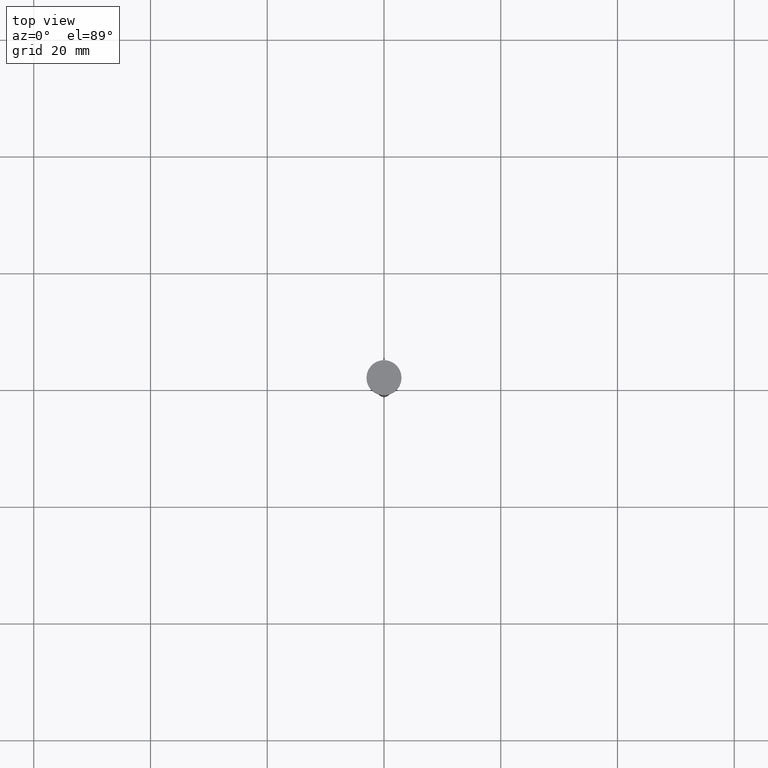
[diagram: clean part render]
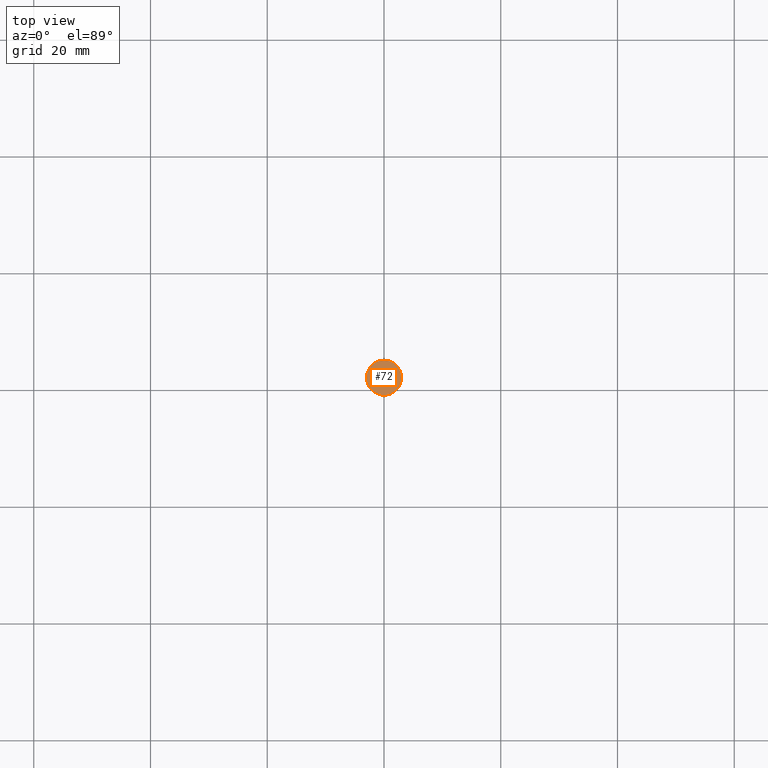
[diagram: same view with one face highlighted and labeled with its STEP entity id]
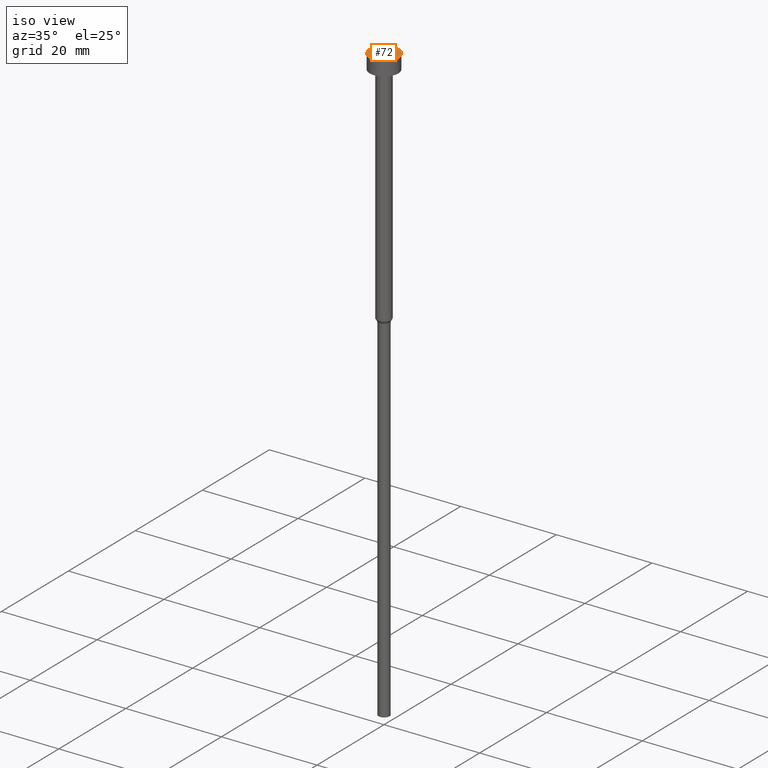
[diagram: same view with one face highlighted and labeled with its STEP entity id]
A machine part, top view. The second image highlights one B-rep face of the part: STEP entity #72.
A second angle (iso view) of the same face is appended — the face is thin or edge-on in the first view.
In plain terms, the highlighted planar face has unit normal (0, -0, 1).
Its self-contained STEP definition (entity closure, byte-faithful):
#2 = EDGE_CURVE ( 'NONE', #183, #113, #18, .T. ) ;
#5 = EDGE_LOOP ( 'NONE', ( #299, #293 ) ) ;
#18 = CIRCLE ( 'NONE', #201, 3.000000000000000000 ) ;
#52 = PLANE ( 'NONE',  #121 ) ;
#54 = CARTESIAN_POINT ( 'NONE',  ( 0.000000000000000000, 0.000000000000000000, -3.673940397442059868E-16 ) ) ;
#72 = ADVANCED_FACE ( 'NONE', ( #98 ), #52, .T. ) ;
#80 = DIRECTION ( 'NONE',  ( 1.000000000000000000, 0.000000000000000000, 0.000000000000000000 ) ) ;
#89 = EDGE_CURVE ( 'NONE', #113, #183, #189, .T. ) ;
#98 = FACE_OUTER_BOUND ( 'NONE', #5, .T. ) ;
#100 = CARTESIAN_POINT ( 'NONE',  ( -3.000000000000000000, 3.673940397442059868E-16, -3.673940397442059868E-16 ) ) ;
#103 = CARTESIAN_POINT ( 'NONE',  ( 0.000000000000000000, 0.000000000000000000, -1.836970198721029934E-16 ) ) ;
#113 = VERTEX_POINT ( 'NONE', #267 ) ;
#121 = AXIS2_PLACEMENT_3D ( 'NONE', #103, #330, #80 ) ;
#153 = DIRECTION ( 'NONE',  ( -0.000000000000000000, -0.000000000000000000, 1.000000000000000000 ) ) ;
#181 = DIRECTION ( 'NONE',  ( 1.000000000000000000, 0.000000000000000000, 0.000000000000000000 ) ) ;
#183 = VERTEX_POINT ( 'NONE', #100 ) ;
#189 = CIRCLE ( 'NONE', #290, 3.000000000000000000 ) ;
#201 = AXIS2_PLACEMENT_3D ( 'NONE', #228, #346, #225 ) ;
#225 = DIRECTION ( 'NONE',  ( 1.000000000000000000, 0.000000000000000000, 0.000000000000000000 ) ) ;
#228 = CARTESIAN_POINT ( 'NONE',  ( 0.000000000000000000, 0.000000000000000000, -3.673940397442059868E-16 ) ) ;
#267 = CARTESIAN_POINT ( 'NONE',  ( 3.000000000000000000, 0.000000000000000000, -3.673940397442059868E-16 ) ) ;
#290 = AXIS2_PLACEMENT_3D ( 'NONE', #54, #153, #181 ) ;
#293 = ORIENTED_EDGE ( 'NONE', *, *, #2, .T. ) ;
#299 = ORIENTED_EDGE ( 'NONE', *, *, #89, .T. ) ;
#330 = DIRECTION ( 'NONE',  ( 0.000000000000000000, -0.000000000000000000, 1.000000000000000000 ) ) ;
#346 = DIRECTION ( 'NONE',  ( -0.000000000000000000, -0.000000000000000000, 1.000000000000000000 ) ) ;